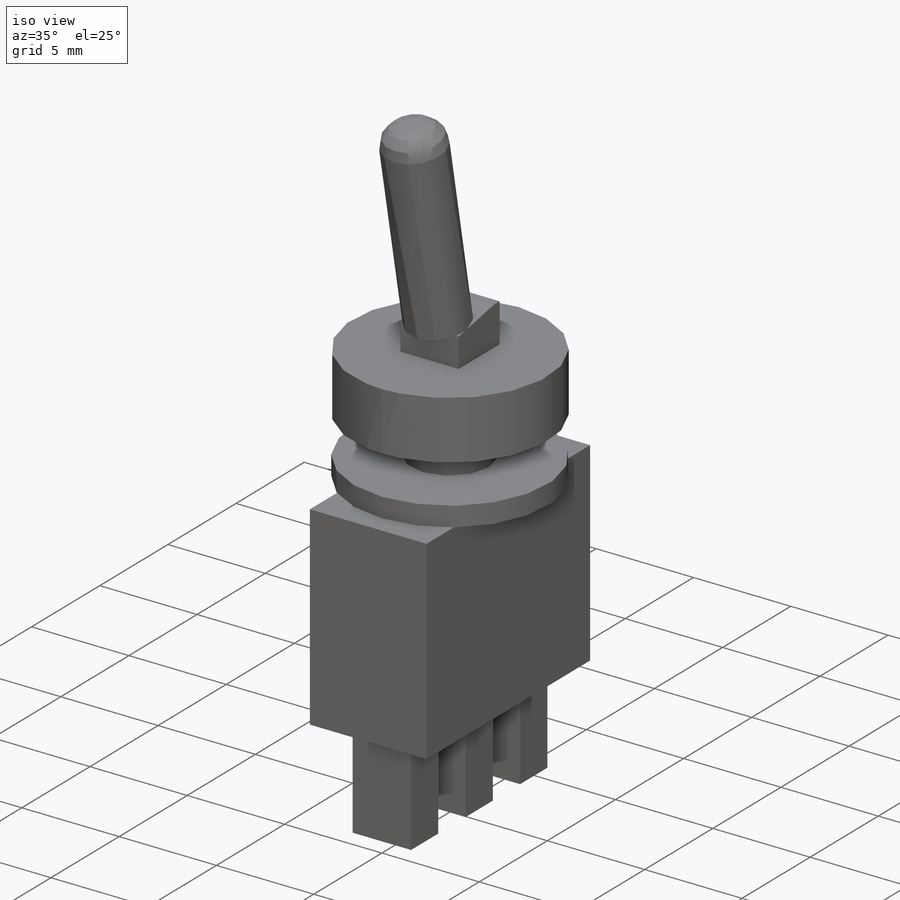
[diagram: iso view]
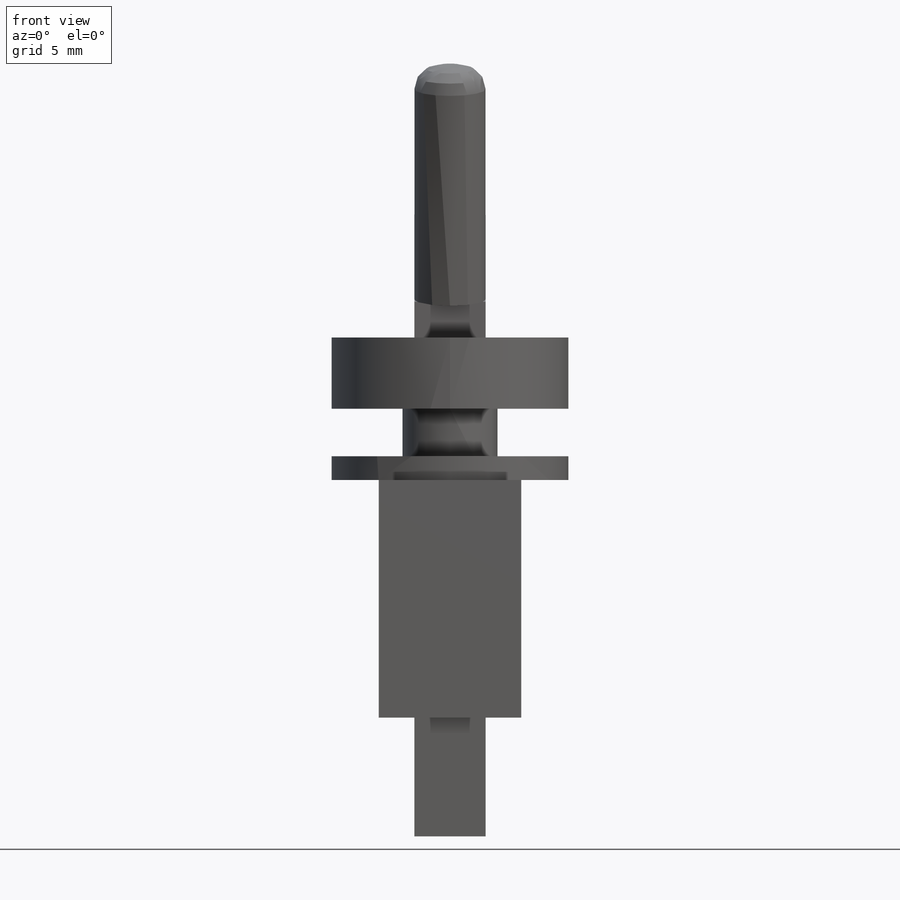
[diagram: front view]
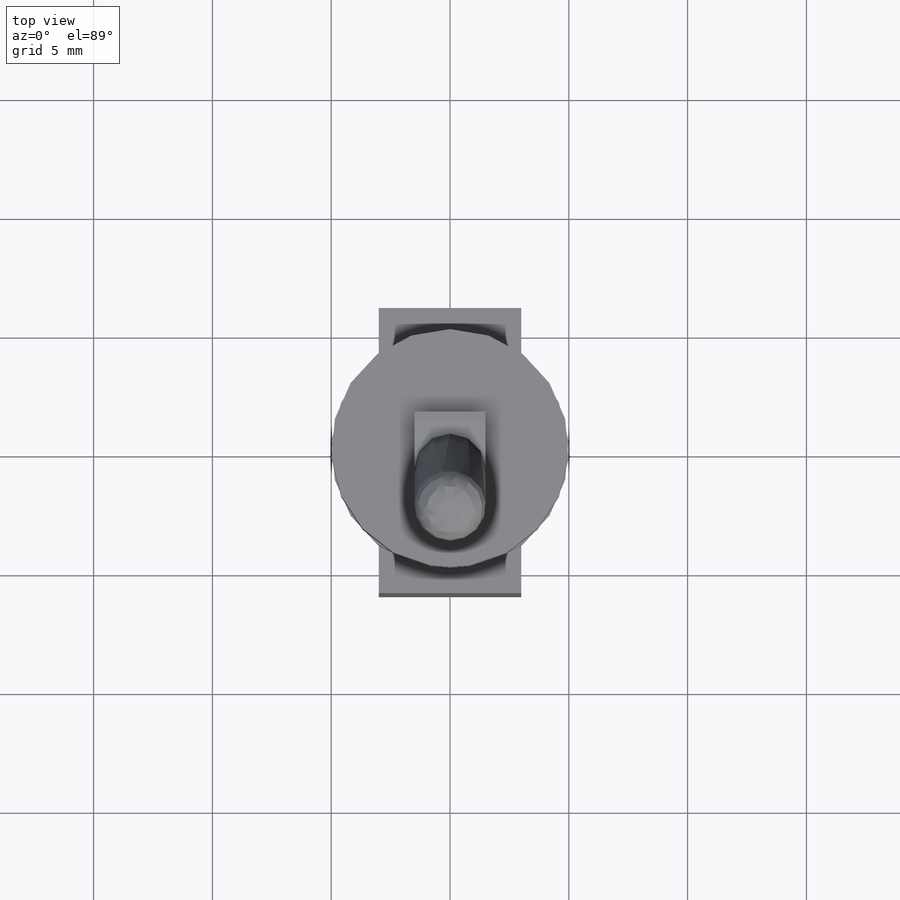
[diagram: top view]
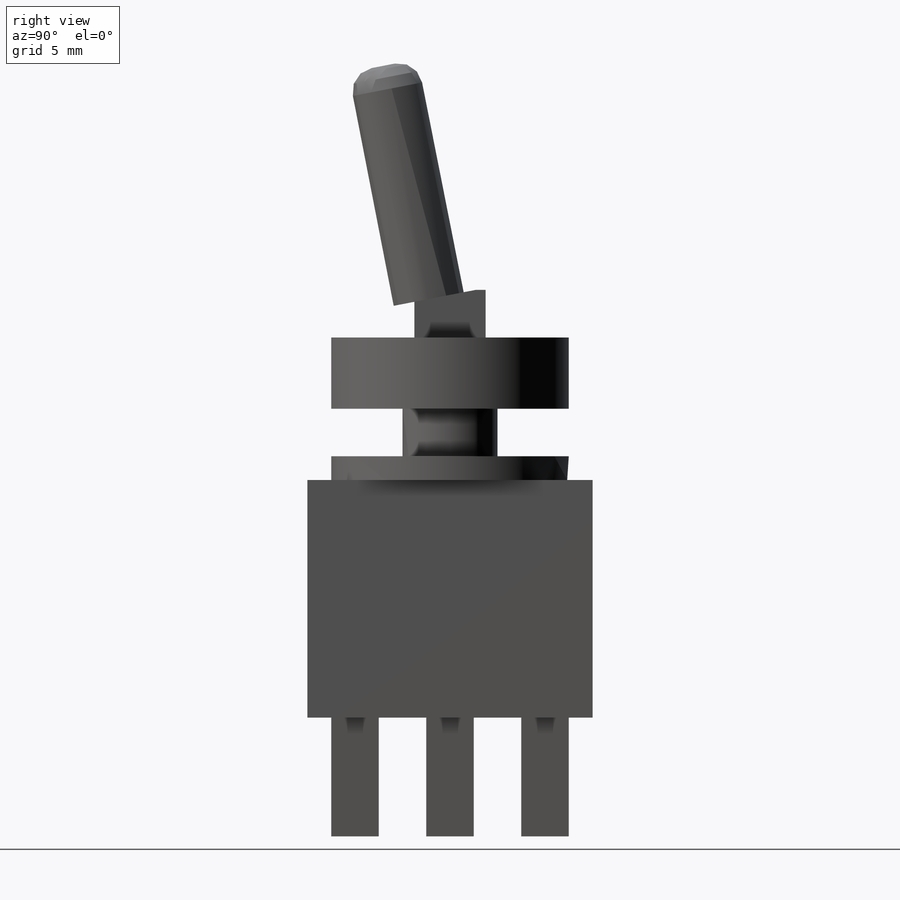
[diagram: right view]
SOLIDWORKS PART (.sldprt)
format: sldprt  version: not decoded by parser v0  size: 206,848 bytes
history: native  units: mm
features: sketch x7, extrude x7, plane x3, material x1, chamfer x1, fillet x1 (+10 scaffold rows collapsed)
feature tree (30):
  scaffold x10  (default folders/planes/origin — collapsed)
  material  "Matériau <non spécifié>"
  plane  "Plan de face"
  plane  "Plan de dessus"
  plane  "Plan de droite"
  sketch  "Esquisse1"  dims[D1=10.0mm]
  extrude  "Extrusion1"  Depth=3mm
  sketch  "Esquisse3"  dims[D1=4.0mm]
  extrude  "Extrusion3"  Depth=2mm
  sketch  "Esquisse4"  dims[D1=10.0mm]
  extrude  "Extrusion4"  Depth=1mm
  sketch  "Esquisse5"  dims[D1=6.0mm D2=3.0mm D3=6.0mm D4=12.0mm]
  extrude  "Extrusion5"  Depth=10mm
  sketch  "Esquisse6"  dims[D1=3.0mm D2=2.0mm D3=2.0mm D4=2.0mm D5=1.0mm D6=1.5mm D7=1.5mm D8=1.5mm]
  extrude  "Extrusion6"  Depth=5mm
  sketch  "Esquisse8"  dims[D1=3.0mm D2=3.0mm D3=1.5mm D4=1.5mm]
  extrude  "Extrusion8"  Depth=2mm
  chamfer  "Chanfrein1"  Distance=0.5mm Angle=79deg
  sketch  "Esquisse9"  dims[D1=3.0mm]
  extrude  "Extrusion9"  Depth=10mm
  fillet  "Congé1"  Radius=1mm
decode coverage: 16 of 16 modeling features carry decoded parameters
note: suppression state not decoded; provenance and decode notes live in map.json
